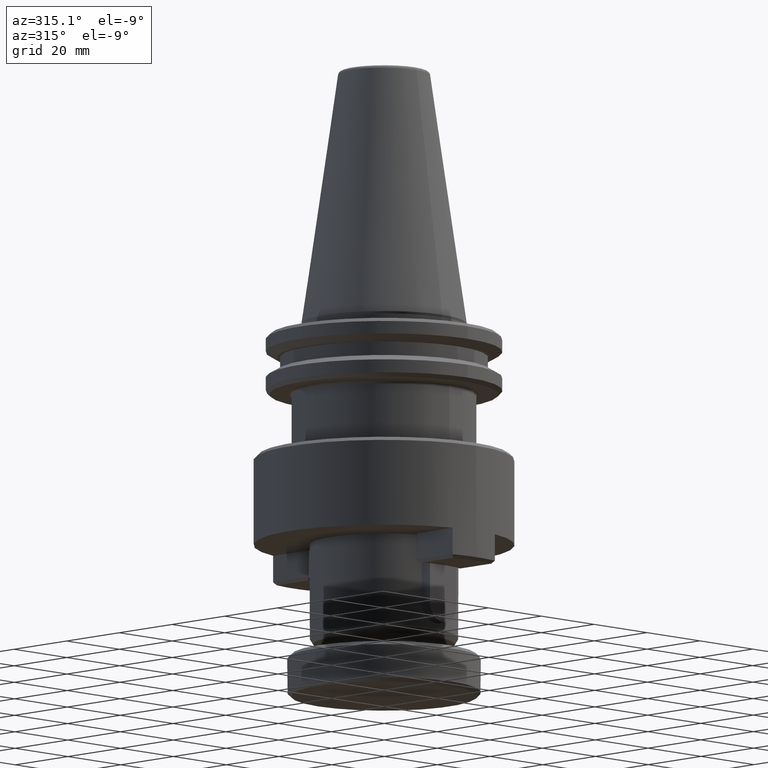
[diagram: clean part render]
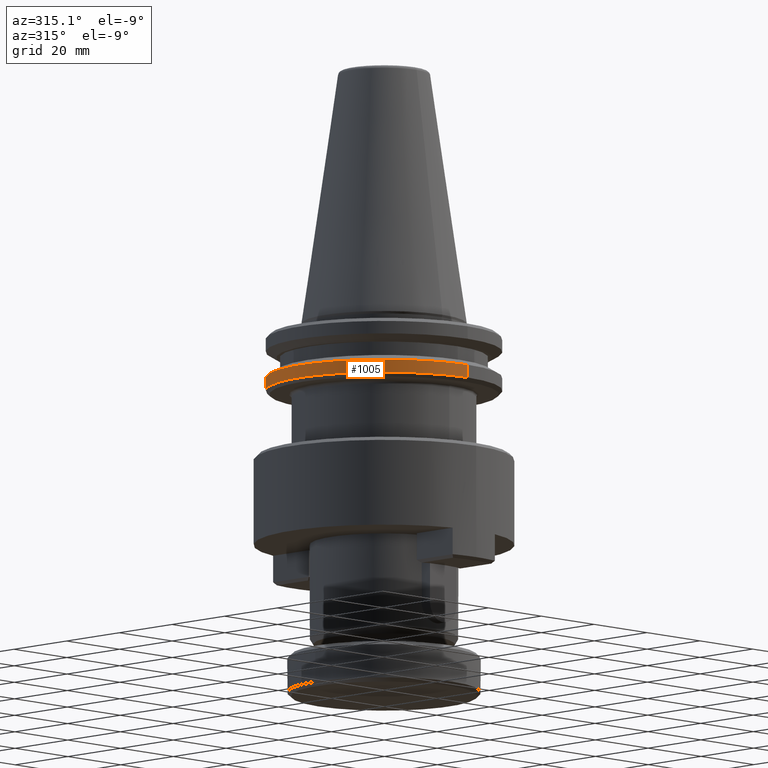
[diagram: same view with one face highlighted and labeled with its STEP entity id]
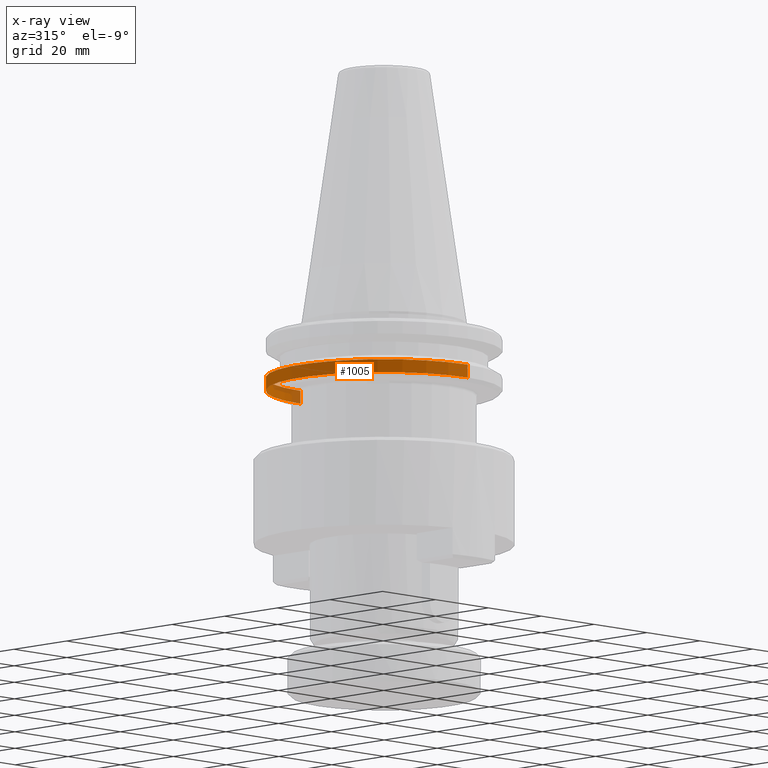
[diagram: x-ray of the same camera — body ghosted, the highlighted face saturated]
A machine part, auxiliary view. The second image highlights one B-rep face of the part: STEP entity #1005.
The next image is the same camera in x-ray: the body ghosted, the highlighted face saturated — about 7% of this face is hidden behind the body in this view.
In plain terms, the highlighted cylindrical surface (partial cylindrical patch) has radius 31.75 mm, axis along (-0, 0, 1).
Its self-contained STEP definition (entity closure, byte-faithful):
#124 = VERTEX_POINT ( 'NONE', #990 ) ;
#196 = ORIENTED_EDGE ( 'NONE', *, *, #1528, .T. ) ;
#351 = CYLINDRICAL_SURFACE ( 'NONE', #941, 31.75000000000000000 ) ;
#355 = DIRECTION ( 'NONE',  ( -0.0000000000000000000, 6.500853926474174700E-029, 1.000000000000000000 ) ) ;
#358 = FACE_OUTER_BOUND ( 'NONE', #2460, .T. ) ;
#376 = DIRECTION ( 'NONE',  ( 0.0000000000000000000, -1.000000000000000000, 0.0000000000000000000 ) ) ;
#385 = AXIS2_PLACEMENT_3D ( 'NONE', #427, #355, #376 ) ;
#427 = CARTESIAN_POINT ( 'NONE',  ( 0.0000000000000000000, -5.458843710178081500E-027, -14.62183664205657300 ) ) ;
#493 = ORIENTED_EDGE ( 'NONE', *, *, #1621, .T. ) ;
#540 = AXIS2_PLACEMENT_3D ( 'NONE', #1700, #2496, #1703 ) ;
#618 = DIRECTION ( 'NONE',  ( -0.0000000000000000000, 6.500853926474174700E-029, 1.000000000000000000 ) ) ;
#676 = CARTESIAN_POINT ( 'NONE',  ( 0.0000000000000000000, -31.75000000000000000, 69.34934271251106000 ) ) ;
#911 = ORIENTED_EDGE ( 'NONE', *, *, #1812, .F. ) ;
#941 = AXIS2_PLACEMENT_3D ( 'NONE', #2064, #2427, #2509 ) ;
#990 = CARTESIAN_POINT ( 'NONE',  ( 0.0000000000000000000, -31.75000000000000000, -18.10000000000083600 ) ) ;
#1005 = ADVANCED_FACE ( 'NONE', ( #358 ), #351, .T. ) ;
#1161 = CIRCLE ( 'NONE', #385, 31.75000000000000000 ) ;
#1237 = VERTEX_POINT ( 'NONE', #2171 ) ;
#1338 = VECTOR ( 'NONE', #1965, 1000.000000000000000 ) ;
#1438 = LINE ( 'NONE', #2040, #1338 ) ;
#1528 = EDGE_CURVE ( 'NONE', #124, #1237, #2114, .T. ) ;
#1621 = EDGE_CURVE ( 'NONE', #1716, #124, #1781, .T. ) ;
#1700 = CARTESIAN_POINT ( 'NONE',  ( 0.0000000000000000000, -5.684954029402187100E-027, -18.10000000000083600 ) ) ;
#1703 = DIRECTION ( 'NONE',  ( 0.0000000000000000000, -1.000000000000000000, 0.0000000000000000000 ) ) ;
#1716 = VERTEX_POINT ( 'NONE', #2401 ) ;
#1750 = EDGE_CURVE ( 'NONE', #1716, #2146, #1438, .T. ) ;
#1781 = CIRCLE ( 'NONE', #540, 31.75000000000000000 ) ;
#1812 = EDGE_CURVE ( 'NONE', #2146, #1237, #1161, .T. ) ;
#1965 = DIRECTION ( 'NONE',  ( -0.0000000000000000000, 6.500853926474174700E-029, 1.000000000000000000 ) ) ;
#2011 = CARTESIAN_POINT ( 'NONE',  ( 0.0000000000000000000, 31.75000000000000000, -14.62183664205657300 ) ) ;
#2040 = CARTESIAN_POINT ( 'NONE',  ( 3.888253587292846500E-015, 31.75000000000000000, 69.34934271251106000 ) ) ;
#2064 = CARTESIAN_POINT ( 'NONE',  ( 0.0000000000000000000, 0.0000000000000000000, 69.34934271251106000 ) ) ;
#2110 = VECTOR ( 'NONE', #618, 1000.000000000000000 ) ;
#2114 = LINE ( 'NONE', #676, #2110 ) ;
#2146 = VERTEX_POINT ( 'NONE', #2011 ) ;
#2171 = CARTESIAN_POINT ( 'NONE',  ( 3.888253587292846500E-015, -31.75000000000000000, -14.62183664205657300 ) ) ;
#2310 = ORIENTED_EDGE ( 'NONE', *, *, #1750, .F. ) ;
#2401 = CARTESIAN_POINT ( 'NONE',  ( 3.888253587292846500E-015, 31.75000000000000000, -18.10000000000083600 ) ) ;
#2427 = DIRECTION ( 'NONE',  ( -0.0000000000000000000, 6.500853926474174700E-029, 1.000000000000000000 ) ) ;
#2460 = EDGE_LOOP ( 'NONE', ( #2310, #493, #196, #911 ) ) ;
#2496 = DIRECTION ( 'NONE',  ( -0.0000000000000000000, 6.500853926474174700E-029, 1.000000000000000000 ) ) ;
#2509 = DIRECTION ( 'NONE',  ( 0.0000000000000000000, -1.000000000000000000, 0.0000000000000000000 ) ) ;